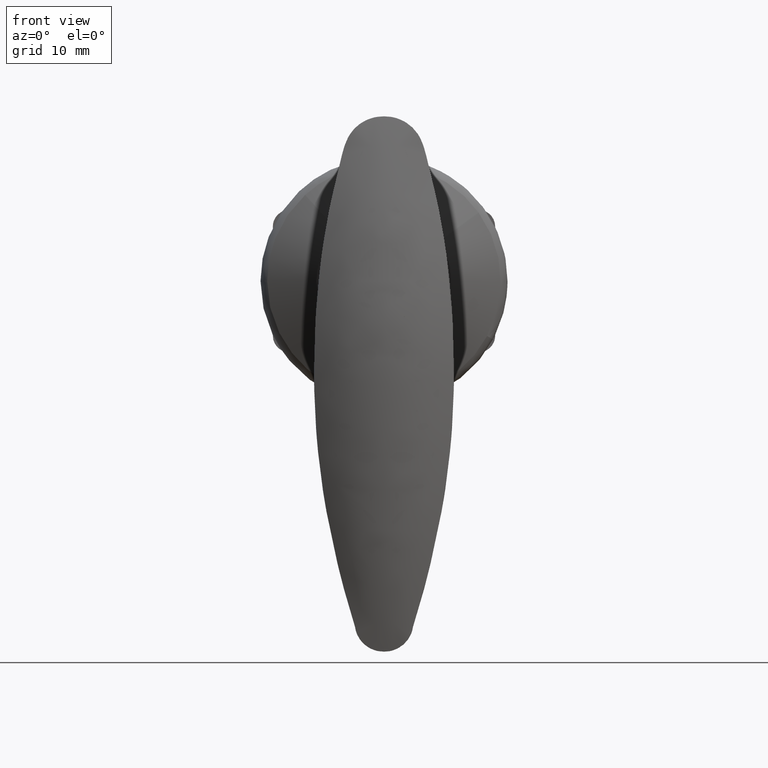
[diagram: clean part render]
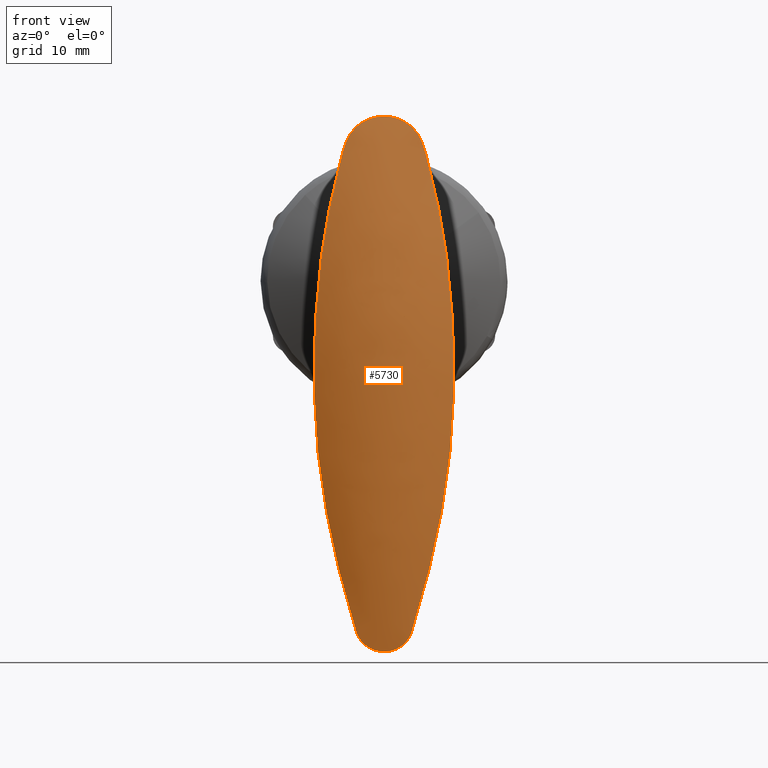
[diagram: same view with one face highlighted and labeled with its STEP entity id]
A machine part, front view. The second image highlights one B-rep face of the part: STEP entity #5730.
In plain terms, the highlighted face is a freeform B-spline surface patch.
Its self-contained STEP definition (entity closure, byte-faithful):
#5040=CARTESIAN_POINT('',(-22.089985114923952,0.059787865266148,-45.000100847799402));
#5041=VERTEX_POINT('',#5040);
#5047=CARTESIAN_POINT('',(-22.516771093642099,3.527464565364250,-41.974515557094598));
#5048=VERTEX_POINT('',#5047);
#5049=CARTESIAN_POINT('',(-22.516771093642099,3.527464565364250,-41.974515557094598));
#5050=CARTESIAN_POINT('',(-22.488698494663112,3.498957515576170,-42.182896088529503));
#5051=CARTESIAN_POINT('',(-22.469711117678980,3.452087266238604,-42.386421253098163));
#5052=CARTESIAN_POINT('',(-22.442522896808921,3.355285671826506,-42.683496238641141));
#5053=CARTESIAN_POINT('',(-22.433703372314142,3.318583937912104,-42.781149447781701));
#5054=CARTESIAN_POINT('',(-22.419819569261058,3.256820084001357,-42.925448738988877));
#5055=CARTESIAN_POINT('',(-22.415087510765641,3.235112123470712,-42.973185127100727));
#5056=CARTESIAN_POINT('',(-22.405305974316420,3.189426564849004,-43.067910672462332));
#5057=CARTESIAN_POINT('',(-22.400244247131241,3.165389265211094,-43.115002892017472));
#5058=CARTESIAN_POINT('',(-22.374213721918402,3.040596836730340,-43.346431799619040));
#5059=CARTESIAN_POINT('',(-22.350710354863988,2.925698333950910,-43.519898375067918));
#5060=CARTESIAN_POINT('',(-22.312762464382740,2.731550122453050,-43.763373223685583));
#5061=CARTESIAN_POINT('',(-22.299716887165300,2.663173869300165,-43.841731600592937));
#5062=CARTESIAN_POINT('',(-22.273430456128040,2.518918032228886,-43.992798507706837));
#5063=CARTESIAN_POINT('',(-22.260137856143199,2.442665832487876,-44.065795782893161));
#5064=CARTESIAN_POINT('',(-22.221646190835560,2.206492019478575,-44.272353824177102));
#5065=CARTESIAN_POINT('',(-22.197764514804600,2.038473749034385,-44.394603537034193));
#5066=CARTESIAN_POINT('',(-22.167064229432111,1.770592018527632,-44.555256701977363));
#5067=CARTESIAN_POINT('',(-22.157663650513459,1.678641195140398,-44.604995215145500));
#5068=CARTESIAN_POINT('',(-22.144938289362020,1.536596908063844,-44.673709760754562));
#5069=CARTESIAN_POINT('',(-22.140914950405300,1.488431198958011,-44.695684358048432));
#5070=CARTESIAN_POINT('',(-22.133391100386270,1.391474215812883,-44.737289241451840));
#5071=CARTESIAN_POINT('',(-22.129888625150791,1.342684883607836,-44.756927915090202));
#5072=CARTESIAN_POINT('',(-22.113619307247600,1.097210858328023,-44.849397580452653));
#5073=CARTESIAN_POINT('',(-22.104580992601250,0.895978945600037,-44.905192812508901));
#5074=CARTESIAN_POINT('',(-22.095735223780519,0.586943299969739,-44.961758522893348));
#5075=CARTESIAN_POINT('',(-22.093571585311459,0.482726726136334,-44.976066375897076));
#5076=CARTESIAN_POINT('',(-22.090691489998392,0.271809770466970,-44.995277591905300));
#5077=CARTESIAN_POINT('',(-22.089985114923952,0.165826792491570,-45.000100847799381));
#5078=CARTESIAN_POINT('',(-22.089985114923952,0.059787865266148,-45.000100847799402));
#5079=B_SPLINE_CURVE_WITH_KNOTS('',3,(#5049,#5050,#5051,#5052,#5053,#5054,#5055,#5056,#5057,#5058,#5059,#5060,#5061,#5062,#5063,#5064,#5065,#5066,#5067,#5068,#5069,#5070,#5071,#5072,#5073,#5074,#5075,#5076,#5077,#5078),.UNSPECIFIED.,.F.,.U.,(4,2,2,2,2,2,2,2,2,2,2,2,2,2,4),(0.0,0.125000000000004,0.187500000000006,0.218750000000007,0.250000000000008,0.375000000000008,0.437500000000007,0.500000000000006,0.625000000000004,0.687500000000003,0.718750000000002,0.750000000000001,0.875000000000000,0.937500000000000,1.0),.UNSPECIFIED.);
#5080=EDGE_CURVE('',#5048,#5041,#5079,.T.);
#5104=CARTESIAN_POINT('',(-22.089985114923952,-0.059787865264833,-45.000100847799402));
#5105=VERTEX_POINT('',#5104);
#5106=CARTESIAN_POINT('',(-22.516771093642198,-3.527464565364355,-41.974515557093902));
#5107=VERTEX_POINT('',#5106);
#5108=CARTESIAN_POINT('',(-22.089985114923952,-0.059787865264833,-45.000100847799402));
#5109=CARTESIAN_POINT('',(-22.089985114923959,-0.271816595266303,-45.000100847799409));
#5110=CARTESIAN_POINT('',(-22.092730988099628,-0.480562825516375,-44.980993666494250));
#5111=CARTESIAN_POINT('',(-22.101497592074811,-0.788950004255111,-44.924898416855072));
#5112=CARTESIAN_POINT('',(-22.105213170285339,-0.890951681667399,-44.901598719383379));
#5113=CARTESIAN_POINT('',(-22.112157578823400,-1.042741523601611,-44.859647774324763));
#5114=CARTESIAN_POINT('',(-22.114701389927081,-1.093135721380454,-44.844495497412197));
#5115=CARTESIAN_POINT('',(-22.120280432013569,-1.193511925937299,-44.811815244852824));
#5116=CARTESIAN_POINT('',(-22.123320102976461,-1.243536141688302,-44.794264071460930));
#5117=CARTESIAN_POINT('',(-22.139644484557149,-1.490048629297188,-44.701467792730448));
#5118=CARTESIAN_POINT('',(-22.156490598914129,-1.677827775939044,-44.610613786852689));
#5119=CARTESIAN_POINT('',(-22.187122429797789,-1.945857899505043,-44.450280549070932));
#5120=CARTESIAN_POINT('',(-22.198210750958179,-2.032915954369602,-44.392801968897757));
#5121=CARTESIAN_POINT('',(-22.221852590100919,-2.202398888160493,-44.269607181364492));
#5122=CARTESIAN_POINT('',(-22.234432592537409,-2.284927921497412,-44.203732462500710));
#5123=CARTESIAN_POINT('',(-22.272860557035191,-2.520764117927799,-43.997533081963603));
#5124=CARTESIAN_POINT('',(-22.299599481881302,-2.664126779779705,-43.847576906666269));
#5125=CARTESIAN_POINT('',(-22.337653004283862,-2.858933142225932,-43.603796698723158));
#5126=CARTESIAN_POINT('',(-22.349992665439931,-2.920473261163537,-43.519374766242549));
#5127=CARTESIAN_POINT('',(-22.367656439760569,-3.007540631105635,-43.387807728909181));
#5128=CARTESIAN_POINT('',(-22.373391938955209,-3.035621216805216,-43.343217639906037));
#5129=CARTESIAN_POINT('',(-22.384459070747852,-3.089485639885997,-43.253266588825007));
#5130=CARTESIAN_POINT('',(-22.389803829734639,-3.115335084640533,-43.207807910216921));
#5131=CARTESIAN_POINT('',(-22.415646571315179,-3.239237105966136,-42.978134612138888));
#5132=CARTESIAN_POINT('',(-22.433076365260600,-3.321380859480680,-42.786790961915678));
#5133=CARTESIAN_POINT('',(-22.460333196454510,-3.418829716251651,-42.488853076217779));
#5134=CARTESIAN_POINT('',(-22.469712401535070,-3.447030511054893,-42.387552484919773));
#5135=CARTESIAN_POINT('',(-22.490944040424409,-3.494299026783570,-42.182088391670590));
#5136=CARTESIAN_POINT('',(-22.502747451323451,-3.513223893523045,-42.078611869702122));
#5137=CARTESIAN_POINT('',(-22.516771093642198,-3.527464565364355,-41.974515557093902));
#5138=B_SPLINE_CURVE_WITH_KNOTS('',3,(#5108,#5109,#5110,#5111,#5112,#5113,#5114,#5115,#5116,#5117,#5118,#5119,#5120,#5121,#5122,#5123,#5124,#5125,#5126,#5127,#5128,#5129,#5130,#5131,#5132,#5133,#5134,#5135,#5136,#5137),.UNSPECIFIED.,.F.,.U.,(4,2,2,2,2,2,2,2,2,2,2,2,2,2,4),(0.0,0.124999999999994,0.187499999999992,0.218749999999991,0.249999999999989,0.374999999999987,0.437499999999987,0.499999999999986,0.624999999999986,0.687499999999987,0.718749999999987,0.749999999999987,0.874999999999993,0.937499999999997,1.0),.UNSPECIFIED.);
#5139=EDGE_CURVE('',#5105,#5107,#5138,.T.);
#5207=CARTESIAN_POINT('',(-22.541682934959550,-4.646358450814359,16.788797362888399));
#5208=VERTEX_POINT('',#5207);
#5209=CARTESIAN_POINT('',(-22.086174934038802,-0.116885684277701,20.000100846054650));
#5210=VERTEX_POINT('',#5209);
#5211=CARTESIAN_POINT('',(-22.541682934959550,-4.646358450814350,16.788797362888399));
#5212=CARTESIAN_POINT('',(-22.525960130754449,-4.605310428205266,16.905826750993221));
#5213=CARTESIAN_POINT('',(-22.513276125681969,-4.559923950017893,17.020724290229069));
#5214=CARTESIAN_POINT('',(-22.493388659430170,-4.460653247865634,17.246301520087719));
#5215=CARTESIAN_POINT('',(-22.485744425481119,-4.406779651150664,17.356947663402369));
#5216=CARTESIAN_POINT('',(-22.471054207578860,-4.290753313534007,17.573706405594500));
#5217=CARTESIAN_POINT('',(-22.463983170361200,-4.228602701644139,17.679817942571439));
#5218=CARTESIAN_POINT('',(-22.447803693665549,-4.096094924318851,17.887311882745589));
#5219=CARTESIAN_POINT('',(-22.438702253100729,-4.025739180959866,17.988695700029201));
#5220=CARTESIAN_POINT('',(-22.422827708320689,-3.913967067007626,18.137116144974499));
#5221=CARTESIAN_POINT('',(-22.417165039659778,-3.875584776607383,18.186081521262171));
#5222=CARTESIAN_POINT('',(-22.405195767675540,-3.797137128300896,18.282250431268359));
#5223=CARTESIAN_POINT('',(-22.398899295015099,-3.757125983808167,18.329397269896759));
#5224=CARTESIAN_POINT('',(-22.379205616876479,-3.634767596082937,18.468089614139728));
#5225=CARTESIAN_POINT('',(-22.364998440582809,-3.550100260554299,18.556891388555751));
#5226=CARTESIAN_POINT('',(-22.320684988517300,-3.286908745639891,18.812697215248530));
#5227=CARTESIAN_POINT('',(-22.289004083691900,-3.099251448532806,18.969185709186220));
#5228=CARTESIAN_POINT('',(-22.251855431493990,-2.848732482735564,19.147354480037801));
#5229=CARTESIAN_POINT('',(-22.244541460390760,-2.797826678954054,19.182109723882061));
#5230=CARTESIAN_POINT('',(-22.230240290791929,-2.694375136004547,19.249839769906028));
#5231=CARTESIAN_POINT('',(-22.223242984901489,-2.641741423537513,19.282862584363649));
#5232=CARTESIAN_POINT('',(-22.203026098100821,-2.482672058812919,19.378422302995020));
#5233=CARTESIAN_POINT('',(-22.190538347342450,-2.374720385776533,19.437703230660031));
#5234=CARTESIAN_POINT('',(-22.156450149526989,-2.045241938417582,19.602574668447840));
#5235=CARTESIAN_POINT('',(-22.138296477803198,-1.818117290198114,19.695270011640670));
#5236=CARTESIAN_POINT('',(-22.117576656990511,-1.466138323107241,19.808213461356541));
#5237=CARTESIAN_POINT('',(-22.111733083027872,-1.346923871430612,19.841492110853611));
#5238=CARTESIAN_POINT('',(-22.104402351487021,-1.165194667304168,19.884641961737760));
#5239=CARTESIAN_POINT('',(-22.102199583878061,-1.104155859672644,19.897884485517761));
#5240=CARTESIAN_POINT('',(-22.098268946836271,-0.982030536244508,19.921901104895589));
#5241=CARTESIAN_POINT('',(-22.096536129576201,-0.920829731269202,19.932703607817601));
#5242=CARTESIAN_POINT('',(-22.088938432921090,-0.614141389853467,19.980729452448589));
#5243=CARTESIAN_POINT('',(-22.086174934038802,-0.366614636914457,20.000100846054650));
#5244=CARTESIAN_POINT('',(-22.086174934038802,-0.116885684277691,20.000100846054650));
#5245=B_SPLINE_CURVE_WITH_KNOTS('',3,(#5211,#5212,#5213,#5214,#5215,#5216,#5217,#5218,#5219,#5220,#5221,#5222,#5223,#5224,#5225,#5226,#5227,#5228,#5229,#5230,#5231,#5232,#5233,#5234,#5235,#5236,#5237,#5238,#5239,#5240,#5241,#5242,#5243,#5244),.UNSPECIFIED.,.F.,.U.,(4,2,2,2,2,2,2,2,2,2,2,2,2,2,2,2,4),(0.0,0.062500000000002,0.125000000000003,0.187500000000005,0.250000000000006,0.281250000000007,0.312500000000007,0.375000000000007,0.500000000000008,0.531250000000007,0.562500000000007,0.625000000000006,0.750000000000005,0.812500000000004,0.843750000000003,0.875000000000003,1.0),.UNSPECIFIED.);
#5246=EDGE_CURVE('',#5208,#5210,#5245,.T.);
#5351=CARTESIAN_POINT('',(-22.541682934959649,4.646358450814620,16.788797362887699));
#5352=VERTEX_POINT('',#5351);
#5358=CARTESIAN_POINT('',(-22.086174934038802,0.116885684276280,20.000100846054650));
#5359=VERTEX_POINT('',#5358);
#5360=CARTESIAN_POINT('',(-22.086174934038802,0.116885684276280,20.000100846054650));
#5361=CARTESIAN_POINT('',(-22.086174934038802,0.366569419815502,20.000100846054650));
#5362=CARTESIAN_POINT('',(-22.088940384014400,0.612934479559822,19.980739314969540));
#5363=CARTESIAN_POINT('',(-22.100925434478309,1.099276130810055,19.904936459072509));
#5364=CARTESIAN_POINT('',(-22.110210184620730,1.339250222135281,19.848491215923570));
#5365=CARTESIAN_POINT('',(-22.127497328687049,1.635069261467388,19.754107641726080));
#5366=CARTESIAN_POINT('',(-22.131249037374950,1.694148687763111,19.733984920759820));
#5367=CARTESIAN_POINT('',(-22.139294560476198,1.810976513469848,19.691639603208380));
#5368=CARTESIAN_POINT('',(-22.143590496971001,1.868783834321782,19.669404142827769));
#5369=CARTESIAN_POINT('',(-22.157307498356221,2.040415863221109,19.599566394319250));
#5370=CARTESIAN_POINT('',(-22.167564248709709,2.152452655109049,19.548837795660798));
#5371=CARTESIAN_POINT('',(-22.201549838569541,2.481568324333981,19.384410099700940));
#5372=CARTESIAN_POINT('',(-22.228646898074949,2.691682332401222,19.258555577634390));
#5373=CARTESIAN_POINT('',(-22.273208116884220,2.992985420806939,19.044996966069291));
#5374=CARTESIAN_POINT('',(-22.288740405928689,3.091471083111542,18.969325686387549));
#5375=CARTESIAN_POINT('',(-22.319652462365308,3.280988000726731,18.811703820374099));
#5376=CARTESIAN_POINT('',(-22.335049786310488,3.372229590231402,18.729655078415451));
#5377=CARTESIAN_POINT('',(-22.379420073126632,3.635747423745189,18.473874311764838));
#5378=CARTESIAN_POINT('',(-22.406273028609281,3.797906959078999,18.290547687297700));
#5379=CARTESIAN_POINT('',(-22.438030264777950,4.020769139010811,17.995620663799080));
#5380=CARTESIAN_POINT('',(-22.447257846171180,4.091757383482618,17.893788901232639));
#5381=CARTESIAN_POINT('',(-22.463689398385561,4.226070468523702,17.684082571281522));
#5382=CARTESIAN_POINT('',(-22.470833222253340,4.288900687394812,17.577009820390650));
#5383=CARTESIAN_POINT('',(-22.485624952244109,4.405940820588584,17.358668803737210));
#5384=CARTESIAN_POINT('',(-22.493300249194021,4.460148305566615,17.247401699272380));
#5385=CARTESIAN_POINT('',(-22.513245823487281,4.559835947294480,17.020971206275981));
#5386=CARTESIAN_POINT('',(-22.525958262312159,4.605305550203826,16.905840658350701));
#5387=CARTESIAN_POINT('',(-22.541682934959649,4.646358450814629,16.788797362887699));
#5388=B_SPLINE_CURVE_WITH_KNOTS('',3,(#5360,#5361,#5362,#5363,#5364,#5365,#5366,#5367,#5368,#5369,#5370,#5371,#5372,#5373,#5374,#5375,#5376,#5377,#5378,#5379,#5380,#5381,#5382,#5383,#5384,#5385,#5386,#5387),.UNSPECIFIED.,.F.,.U.,(4,2,2,2,2,2,2,2,2,2,2,2,2,4),(0.0,0.124999999999998,0.249999999999997,0.281249999999996,0.312499999999996,0.374999999999996,0.499999999999995,0.562499999999995,0.624999999999996,0.749999999999997,0.812499999999998,0.874999999999999,0.937499999999999,1.0),.UNSPECIFIED.);
#5389=EDGE_CURVE('',#5359,#5352,#5388,.T.);
#5476=CARTESIAN_POINT('',(-22.541682934959660,4.646358450814623,16.788797362887699));
#5477=CARTESIAN_POINT('',(-22.561433849767010,4.697922789274031,16.641785580239858));
#5478=CARTESIAN_POINT('',(-22.640878577284841,4.950811082827303,16.045340395906141));
#5479=CARTESIAN_POINT('',(-22.909479234230549,5.396294546252640,13.965785493972881));
#5480=CARTESIAN_POINT('',(-23.539935814401499,6.839112904347730,8.512525722399960));
#5481=CARTESIAN_POINT('',(-24.231237488719248,8.135356959447970,-0.025612660580588));
#5482=CARTESIAN_POINT('',(-24.621797418235801,8.745410679522550,-11.982539191201459));
#5483=CARTESIAN_POINT('',(-24.312525130886151,7.904620147357551,-24.445099590267251));
#5484=CARTESIAN_POINT('',(-23.452960166495501,5.694440284739790,-34.442382535528552));
#5485=CARTESIAN_POINT('',(-22.795498684353252,4.194723965619850,-39.862976392511698));
#5486=CARTESIAN_POINT('',(-22.595957723502480,3.628877967732600,-41.384015310147383));
#5487=CARTESIAN_POINT('',(-22.534394888058859,3.545361105163499,-41.843695619502817));
#5488=CARTESIAN_POINT('',(-22.516771093642099,3.527464565364250,-41.974515557094598));
#5489=B_SPLINE_CURVE_WITH_KNOTS('',3,(#5476,#5477,#5478,#5479,#5480,#5481,#5482,#5483,#5484,#5485,#5486,#5487,#5488),.UNSPECIFIED.,.F.,.U.,(4,1,1,1,1,1,1,1,1,1,4),(0.049282032744945,0.056054414768451,0.076753910680361,0.145107171290212,0.307467516306832,0.470929599459215,0.697667441982932,0.883513564293831,0.932384456043438,0.947543075388542,0.953574015564309),.UNSPECIFIED.);
#5490=EDGE_CURVE('',#5352,#5048,#5489,.T.);
#5614=CARTESIAN_POINT('',(-22.541682934959560,-4.646358450814358,16.788797362888399));
#5615=CARTESIAN_POINT('',(-22.561433849766949,-4.697922789273814,16.641785580240331));
#5616=CARTESIAN_POINT('',(-22.640878577284809,-4.950811082827236,16.045340395906379));
#5617=CARTESIAN_POINT('',(-22.909479234230549,-5.396294546252690,13.965785493972881));
#5618=CARTESIAN_POINT('',(-23.539935814401449,-6.839112904347680,8.512525722399960));
#5619=CARTESIAN_POINT('',(-24.231237488719248,-8.135356959448011,-0.025612660580589));
#5620=CARTESIAN_POINT('',(-24.621797418235751,-8.745410679522561,-11.982539191201459));
#5621=CARTESIAN_POINT('',(-24.312525130886151,-7.904620147357581,-24.445099590267251));
#5622=CARTESIAN_POINT('',(-23.452960166495551,-5.694440284739760,-34.442382535528552));
#5623=CARTESIAN_POINT('',(-22.795498684353198,-4.194723965619859,-39.862976392511698));
#5624=CARTESIAN_POINT('',(-22.595957723502519,-3.628877967732698,-41.384015310147142));
#5625=CARTESIAN_POINT('',(-22.534394888058941,-3.545361105163595,-41.843695619502363));
#5626=CARTESIAN_POINT('',(-22.516771093642198,-3.527464565364355,-41.974515557093902));
#5627=B_SPLINE_CURVE_WITH_KNOTS('',3,(#5614,#5615,#5616,#5617,#5618,#5619,#5620,#5621,#5622,#5623,#5624,#5625,#5626),.UNSPECIFIED.,.F.,.U.,(4,1,1,1,1,1,1,1,1,1,4),(0.049282032744935,0.056054414768451,0.076753910680361,0.145107171290212,0.307467516306832,0.470929599459215,0.697667441982932,0.883513564293831,0.932384456043438,0.947543075388542,0.953574015564299),.UNSPECIFIED.);
#5628=EDGE_CURVE('',#5208,#5107,#5627,.T.);
#5647=CARTESIAN_POINT('',(-22.086174934038802,5.0,20.000100846054650));
#5648=CARTESIAN_POINT('',(-22.086174934038802,1.666666666666665,20.000100846054650));
#5649=CARTESIAN_POINT('',(-22.086174934038802,-1.666666666666670,20.000100846054650));
#5650=CARTESIAN_POINT('',(-22.086174934038802,-5.0,20.000100846054650));
#5651=CARTESIAN_POINT('',(-22.086179895738699,5.0,20.000067230703799));
#5652=CARTESIAN_POINT('',(-22.086179895738699,1.666666666666665,20.000067230703799));
#5653=CARTESIAN_POINT('',(-22.086179895738699,-1.666666666666670,20.000067230703799));
#5654=CARTESIAN_POINT('',(-22.086179895738699,-5.0,20.000067230703799));
#5655=CARTESIAN_POINT('',(-22.234009069520400,5.000011193136240,18.998527557408000));
#5656=CARTESIAN_POINT('',(-22.234002436537551,1.666670167299010,18.998527557408000));
#5657=CARTESIAN_POINT('',(-22.234002436537551,-1.666670167299010,18.998527557408000));
#5658=CARTESIAN_POINT('',(-22.234009069520400,-5.000011193136240,18.998527557408000));
#5659=CARTESIAN_POINT('',(-22.408704893804401,4.186085769385060,17.784476581659550));
#5660=CARTESIAN_POINT('',(-22.891025420261450,1.412116519885544,17.784476581659501));
#5661=CARTESIAN_POINT('',(-22.891025420261499,-1.412116519885510,17.784476581659501));
#5662=CARTESIAN_POINT('',(-22.408704893804401,-4.186085769385036,17.784476581659550));
#5663=CARTESIAN_POINT('',(-22.631492718407252,4.935244311816550,16.118007414146899));
#5664=CARTESIAN_POINT('',(-23.403111571933650,1.690599303865675,16.118007414146899));
#5665=CARTESIAN_POINT('',(-23.403111571933650,-1.690599303865635,16.118007414146899));
#5666=CARTESIAN_POINT('',(-22.631492718407252,-4.935244311816530,16.118007414146899));
#5667=CARTESIAN_POINT('',(-22.909479234230549,5.396294546252640,13.965785493972881));
#5668=CARTESIAN_POINT('',(-24.081562866693901,1.888914866825830,13.965785493972900));
#5669=CARTESIAN_POINT('',(-24.081562866693901,-1.888914866825910,13.965785493972900));
#5670=CARTESIAN_POINT('',(-22.909479234230549,-5.396294546252690,13.965785493972881));
#5671=CARTESIAN_POINT('',(-23.539935814401499,6.839112904347730,8.512525722399960));
#5672=CARTESIAN_POINT('',(-25.575080891768749,2.501919742206805,8.512525722399950));
#5673=CARTESIAN_POINT('',(-25.575080891768749,-2.501919742206725,8.512525722399950));
#5674=CARTESIAN_POINT('',(-23.539935814401449,-6.839112904347680,8.512525722399960));
#5675=CARTESIAN_POINT('',(-24.231237488719248,8.135356959447970,-0.025612660580588));
#5676=CARTESIAN_POINT('',(-27.208294870848349,3.117639507121845,-0.025612660580587));
#5677=CARTESIAN_POINT('',(-27.208294870848398,-3.117639507121885,-0.025612660580586));
#5678=CARTESIAN_POINT('',(-24.231237488719248,-8.135356959448011,-0.025612660580589));
#5679=CARTESIAN_POINT('',(-24.621797418235801,8.745410679522550,-11.982539191201459));
#5680=CARTESIAN_POINT('',(-28.118318549865549,3.438273176537680,-11.982539191201459));
#5681=CARTESIAN_POINT('',(-28.118318549865549,-3.438273176537705,-11.982539191201459));
#5682=CARTESIAN_POINT('',(-24.621797418235751,-8.745410679522561,-11.982539191201459));
#5683=CARTESIAN_POINT('',(-24.312525130886151,7.904620147357551,-24.445099590267251));
#5684=CARTESIAN_POINT('',(-27.387443998451349,3.089499659530505,-24.445099590267251));
#5685=CARTESIAN_POINT('',(-27.387443998451349,-3.089499659530545,-24.445099590267251));
#5686=CARTESIAN_POINT('',(-24.312525130886151,-7.904620147357581,-24.445099590267251));
#5687=CARTESIAN_POINT('',(-23.452960166495501,5.694440284739790,-34.442382535528552));
#5688=CARTESIAN_POINT('',(-25.398590464524851,2.130544553627499,-34.442382535528601));
#5689=CARTESIAN_POINT('',(-25.398590464524901,-2.130544553627460,-34.442382535528601));
#5690=CARTESIAN_POINT('',(-23.452960166495551,-5.694440284739760,-34.442382535528552));
#5691=CARTESIAN_POINT('',(-22.795498684353252,4.194723965619850,-39.862976392511698));
#5692=CARTESIAN_POINT('',(-23.787481422782651,1.487782902144684,-39.862976392511698));
#5693=CARTESIAN_POINT('',(-23.787481422782651,-1.487782902144682,-39.862976392511698));
#5694=CARTESIAN_POINT('',(-22.795498684353198,-4.194723965619859,-39.862976392511698));
#5695=CARTESIAN_POINT('',(-22.463735082303451,3.253929124980915,-42.391907535376852));
#5696=CARTESIAN_POINT('',(-23.033887122292249,1.114871653782886,-42.391907535376902));
#5697=CARTESIAN_POINT('',(-23.033887122292249,-1.114871653782900,-42.391907535376902));
#5698=CARTESIAN_POINT('',(-22.463735082303501,-3.253929124980925,-42.391907535376852));
#5699=CARTESIAN_POINT('',(-22.258813609539651,3.600003945479100,-43.856271794197703));
#5700=CARTESIAN_POINT('',(-22.258807109324149,1.200000970527526,-43.856271794197703));
#5701=CARTESIAN_POINT('',(-22.258807109324149,-1.200000970527526,-43.856271794197703));
#5702=CARTESIAN_POINT('',(-22.258813609539651,-3.600003945479100,-43.856271794197703));
#5703=CARTESIAN_POINT('',(-22.089990076623700,3.600000000000000,-45.000067231867703));
#5704=CARTESIAN_POINT('',(-22.089990076623700,1.200000000000000,-45.000067231867703));
#5705=CARTESIAN_POINT('',(-22.089990076623700,-1.200000000000000,-45.000067231867703));
#5706=CARTESIAN_POINT('',(-22.089990076623700,-3.600000000000000,-45.000067231867703));
#5707=CARTESIAN_POINT('',(-22.089985114923952,3.600000000000000,-45.000100847799402));
#5708=CARTESIAN_POINT('',(-22.089985114923952,1.200000000000000,-45.000100847799402));
#5709=CARTESIAN_POINT('',(-22.089985114923952,-1.200000000000000,-45.000100847799402));
#5710=CARTESIAN_POINT('',(-22.089985114923952,-3.600000000000000,-45.000100847799402));
#5711=B_SPLINE_SURFACE_WITH_KNOTS('',3,3,((#5647,#5651,#5655,#5659,#5663,#5667,#5671,#5675,#5679,#5683,#5687,#5691,#5695,#5699,#5703,#5707),(#5648,#5652,#5656,#5660,#5664,#5668,#5672,#5676,#5680,#5684,#5688,#5692,#5696,#5700,#5704,#5708),(#5649,#5653,#5657,#5661,#5665,#5669,#5673,#5677,#5681,#5685,#5689,#5693,#5697,#5701,#5705,#5709),(#5650,#5654,#5658,#5662,#5666,#5670,#5674,#5678,#5682,#5686,#5690,#5694,#5698,#5702,#5706,#5710)),.UNSPECIFIED.,.F.,.F.,.U.,(4,4),(4,1,1,1,1,1,1,1,1,1,1,1,1,4),(0.0,18.455886549103429),(0.0,0.000106331727585,3.168059385525578,3.866099296181252,5.293753244704578,10.008109711131720,21.206178912092941,32.480235509387668,48.118450929521998,60.936345213712663,64.306993555638542,65.352490646693184,68.970363026509972,68.970469358234993),.UNSPECIFIED.);
#5712=CARTESIAN_POINT('',(-22.089985114923952,0.059787865266148,-45.000100847799402));
#5713=CARTESIAN_POINT('',(-22.089985114923952,-0.059787865264833,-45.000100847799402));
#5714=QUASI_UNIFORM_CURVE('',1,(#5712,#5713),.UNSPECIFIED.,.F.,.U.);
#5715=EDGE_CURVE('',#5041,#5105,#5714,.T.);
#5716=ORIENTED_EDGE('',*,*,#5715,.T.);
#5717=ORIENTED_EDGE('',*,*,#5139,.T.);
#5718=ORIENTED_EDGE('',*,*,#5628,.F.);
#5719=ORIENTED_EDGE('',*,*,#5246,.T.);
#5720=CARTESIAN_POINT('',(-22.086174934038802,0.116885684276280,20.000100846054650));
#5721=CARTESIAN_POINT('',(-22.086174934038802,-0.116885684277701,20.000100846054650));
#5722=QUASI_UNIFORM_CURVE('',1,(#5720,#5721),.UNSPECIFIED.,.F.,.U.);
#5723=EDGE_CURVE('',#5359,#5210,#5722,.T.);
#5724=ORIENTED_EDGE('',*,*,#5723,.F.);
#5725=ORIENTED_EDGE('',*,*,#5389,.T.);
#5726=ORIENTED_EDGE('',*,*,#5490,.T.);
#5727=ORIENTED_EDGE('',*,*,#5080,.T.);
#5728=EDGE_LOOP('',(#5716,#5717,#5718,#5719,#5724,#5725,#5726,#5727));
#5729=FACE_OUTER_BOUND('',#5728,.T.);
#5730=ADVANCED_FACE('',(#5729),#5711,.F.);